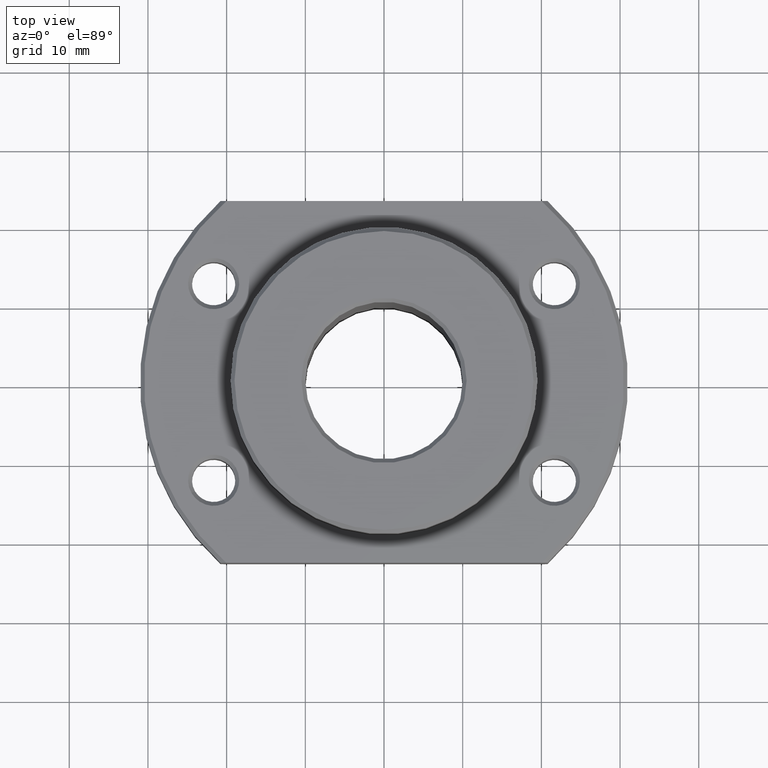
[diagram: clean part render]
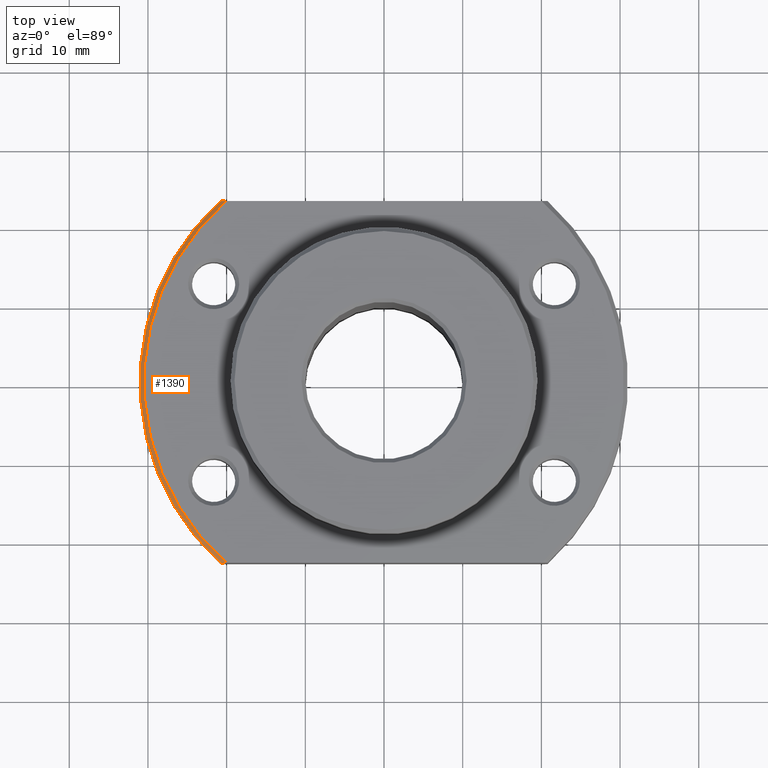
[diagram: same view with one face highlighted and labeled with its STEP entity id]
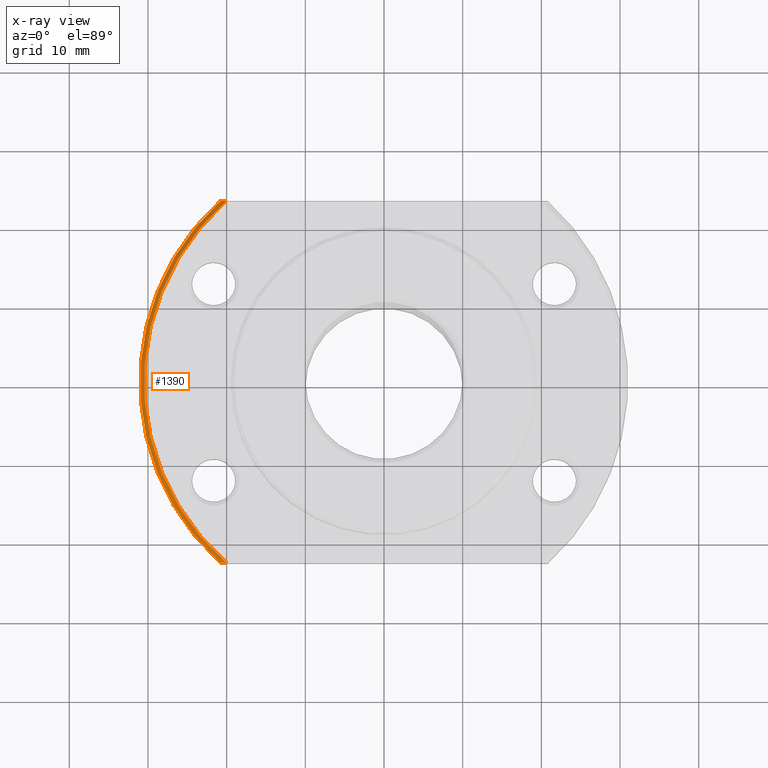
[diagram: x-ray of the same camera — body ghosted, the highlighted face saturated]
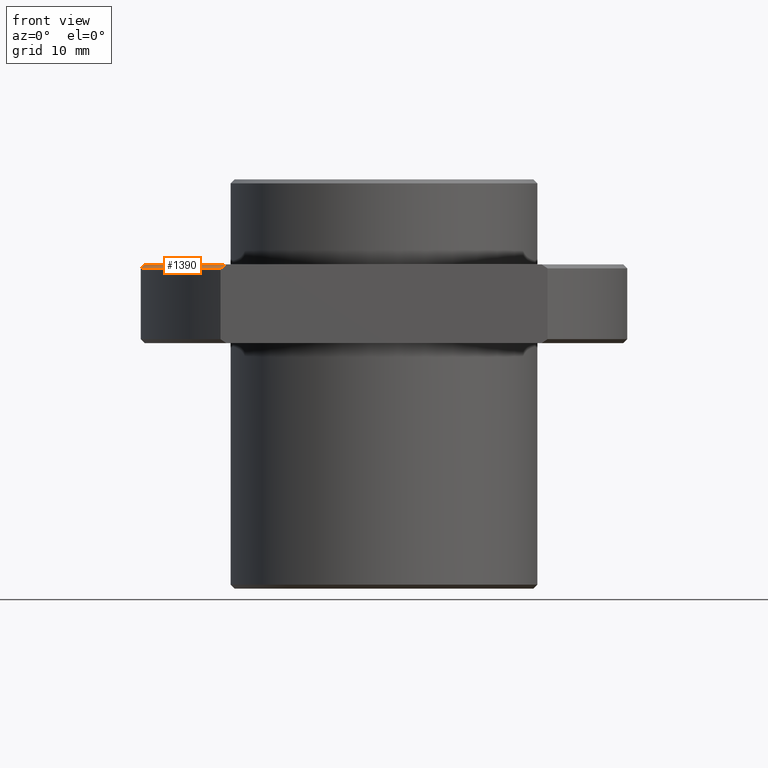
[diagram: same view with one face highlighted and labeled with its STEP entity id]
A machine part, top view. The second image highlights one B-rep face of the part: STEP entity #1390.
The next image is the same camera in x-ray: the body ghosted, the highlighted face saturated — about 0% of this face is hidden behind the body in this view.
A second angle (front view) of the same face is appended — the face is thin or edge-on in the first view.
In plain terms, the highlighted conical surface has half-angle 45 deg.
Its self-contained STEP definition (entity closure, byte-faithful):
#1270=AXIS2_PLACEMENT_3D('Circle Axis2P3D',#1268,#1269,$) ;
#1321=AXIS2_PLACEMENT_3D('Circle Axis2P3D',#1319,#1320,$) ;
#1382=AXIS2_PLACEMENT_3D('Cone Axis2P3D',#1379,#1380,#1381) ;
#1258=CARTESIAN_POINT('Vertex',(-20.031225624,-23.,41.2)) ;
#1265=CARTESIAN_POINT('Vertex',(-20.031225624,23.,41.2)) ;
#1268=CARTESIAN_POINT('Axis2P3D Location',(0.,-3.2528167469E-015,41.2)) ;
#1309=CARTESIAN_POINT('Vertex',(-20.7846096908,23.,40.7)) ;
#1316=CARTESIAN_POINT('Vertex',(-20.7846096908,-23.,40.7)) ;
#1319=CARTESIAN_POINT('Axis2P3D Location',(0.,0.,40.7)) ;
#1337=CARTESIAN_POINT('Control Point',(-20.7846096908,23.,40.7)) ;
#1338=CARTESIAN_POINT('Control Point',(-20.6324219617,23.,40.8020375016)) ;
#1339=CARTESIAN_POINT('Control Point',(-20.4809943697,23.,40.9030512625)) ;
#1340=CARTESIAN_POINT('Control Point',(-20.3303102597,23.,41.0030541462)) ;
#1341=CARTESIAN_POINT('Control Point',(-20.1803932172,23.,41.1020324676)) ;
#1342=CARTESIAN_POINT('Control Point',(-20.031225624,23.,41.2)) ;
#1361=CARTESIAN_POINT('Control Point',(-20.7846096908,-23.,40.7)) ;
#1362=CARTESIAN_POINT('Control Point',(-20.632421852,-23.,40.8020375752)) ;
#1363=CARTESIAN_POINT('Control Point',(-20.4809941513,-23.,40.9030514082)) ;
#1364=CARTESIAN_POINT('Control Point',(-20.3303104734,-23.,41.0030540092)) ;
#1365=CARTESIAN_POINT('Control Point',(-20.1803933235,-23.,41.1020323998)) ;
#1366=CARTESIAN_POINT('Control Point',(-20.031225624,-23.,41.2)) ;
#1379=CARTESIAN_POINT('Axis2P3D Location',(-2.20268248086E-013,-2.76871265609E-013,71.7)) ;
#1269=DIRECTION('Axis2P3D Direction',(0.,0.,1.)) ;
#1320=DIRECTION('Axis2P3D Direction',(0.,0.,1.)) ;
#1380=DIRECTION('Axis2P3D Direction',(7.1054273576E-015,9.04986329989E-015,-1.)) ;
#1381=DIRECTION('Axis2P3D XDirection',(0.807501441828,0.589865596085,1.11952566357E-014)) ;
#1385=ORIENTED_EDGE('',*,*,#1272,.F.) ;
#1386=ORIENTED_EDGE('',*,*,#1343,.T.) ;
#1387=ORIENTED_EDGE('',*,*,#1323,.T.) ;
#1388=ORIENTED_EDGE('',*,*,#1367,.T.) ;
#1390=ADVANCED_FACE('',(#1389),#1383,.T.) ;
#1336=B_SPLINE_CURVE_WITH_KNOTS('',5,(#1337,#1338,#1339,#1340,#1341,#1342),.UNSPECIFIED.,.F.,.U.,(6,6),(0.,2.16254865444),.UNSPECIFIED.) ;
#1360=B_SPLINE_CURVE_WITH_KNOTS('',5,(#1361,#1362,#1363,#1364,#1365,#1366),.UNSPECIFIED.,.F.,.U.,(6,6),(0.,2.16255021414),.UNSPECIFIED.) ;
#1271=CIRCLE('generated circle',#1270,30.5) ;
#1322=CIRCLE('generated circle',#1321,31.) ;
#1383=CONICAL_SURFACE('Cone',#1382,0.,0.785398163397) ;
#1272=EDGE_CURVE('',#1266,#1259,#1271,.T.) ;
#1323=EDGE_CURVE('',#1310,#1317,#1322,.T.) ;
#1343=EDGE_CURVE('',#1266,#1310,#1336,.F.) ;
#1367=EDGE_CURVE('',#1317,#1259,#1360,.T.) ;
#1384=EDGE_LOOP('',(#1385,#1386,#1387,#1388)) ;
#1389=FACE_OUTER_BOUND('',#1384,.T.) ;
#1259=VERTEX_POINT('',#1258) ;
#1266=VERTEX_POINT('',#1265) ;
#1310=VERTEX_POINT('',#1309) ;
#1317=VERTEX_POINT('',#1316) ;